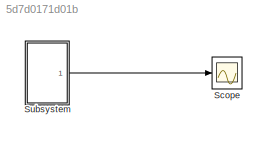
MODEL slx_5d7d0171d01b
KIND model
CONFIG AbsTol = auto
CONFIG EnableMultiTasking = off
CONFIG FixedStep = 0.01
CONFIG MaxStep = auto
CONFIG MinStep = auto
CONFIG RelTol = 1e-3
CONFIG SampleTimeConstraint = Unconstrained
CONFIG Solver = ode4
CONFIG SolverName = ode4
CONFIG StartTime = 0.0
CONFIG StopTime = 100.0
BLOCK [Scope] Scope
  Floating = off
  NumInputPorts = 1
  Ports = [1]
  ScopeSpecificationString = Simulink.scopes.TimeScopeBlockCfg('CurrentConfiguration', extmgr.ConfigurationSet(extmgr.Configuration('Core','General UI',true),extmgr.Configuration('Core','Source UI',true),extmgr.Configuration('Sources','WiredSimulink',true),extmgr.Configuration('Visuals','Time Domain',true,'SerializedDisplays',{struct('MinYLimReal','-1.7732','MaxYLimReal','1.94235','YLabelReal','','MinYLimMag','0.00000','MaxYL...<+1383ch>
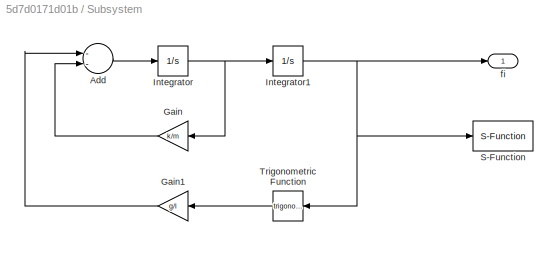
BLOCK [SubSystem] Subsystem
  Ports = [0, 1]
  RequestExecContextInheritance = off
BLOCK [Sum] Subsystem/Add
  InputSameDT = off
  Inputs = --
  OutDataTypeStr = Inherit: Inherit via internal rule
  Ports = [2, 1]
  SaturateOnIntegerOverflow = off
BLOCK [Gain] Subsystem/Gain
  Gain = k/m
  OutDataTypeStr = Inherit: Inherit via internal rule
  ParamDataTypeStr = Inherit: Inherit via internal rule
  SaturateOnIntegerOverflow = off
BLOCK [Gain] Subsystem/Gain1
  Gain = g/l
  OutDataTypeStr = Inherit: Inherit via internal rule
  ParamDataTypeStr = Inherit: Inherit via internal rule
  SaturateOnIntegerOverflow = off
BLOCK [Integrator] Subsystem/Integrator
  Ports = [1, 1]
BLOCK [Integrator] Subsystem/Integrator1
  InitialCondition = fi0 * pi/180
  Ports = [1, 1]
BLOCK [S-Function] Subsystem/S-Function
  EnableBusSupport = off
  FunctionName = wahadlo_sfun
  Parameters = l,m,fi0
  Ports = [1]
  SFcnIsStateOwnerBlock = off
  SFunctionDeploymentMode = off
BLOCK [Trigonometry] Subsystem/Trigonometric Function
  Ports = [1, 1]
BLOCK [Outport] Subsystem/fi
  IconDisplay = Port number
LINE Subsystem/Add:1 -> Subsystem/Integrator:1
LINE Subsystem/Gain1:1 -> Subsystem/Add:1
LINE Subsystem/Gain:1 -> Subsystem/Add:2
NET Subsystem/Integrator1:1 -> Subsystem/S-Function:1, Subsystem/Trigonometric Function:1, Subsystem/fi:1
NET Subsystem/Integrator:1 -> Subsystem/Gain:1, Subsystem/Integrator1:1
LINE Subsystem/Trigonometric Function:1 -> Subsystem/Gain1:1
LINE Subsystem:1 -> Scope:1
note: NET lines group one-source signal fan-out (src -> all destinations, sorted); 1:1 wires keep LINE
